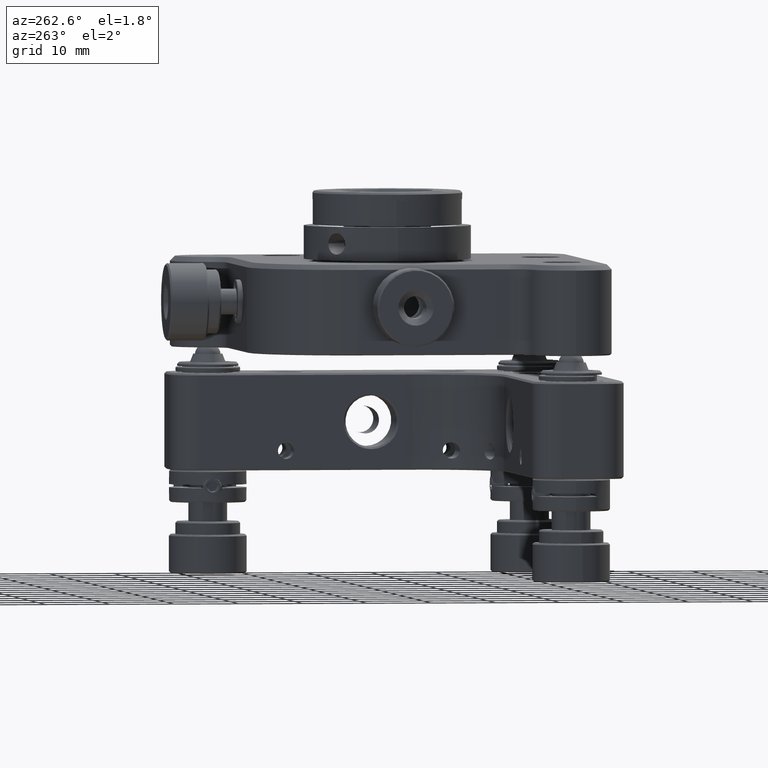
[diagram: clean part render]
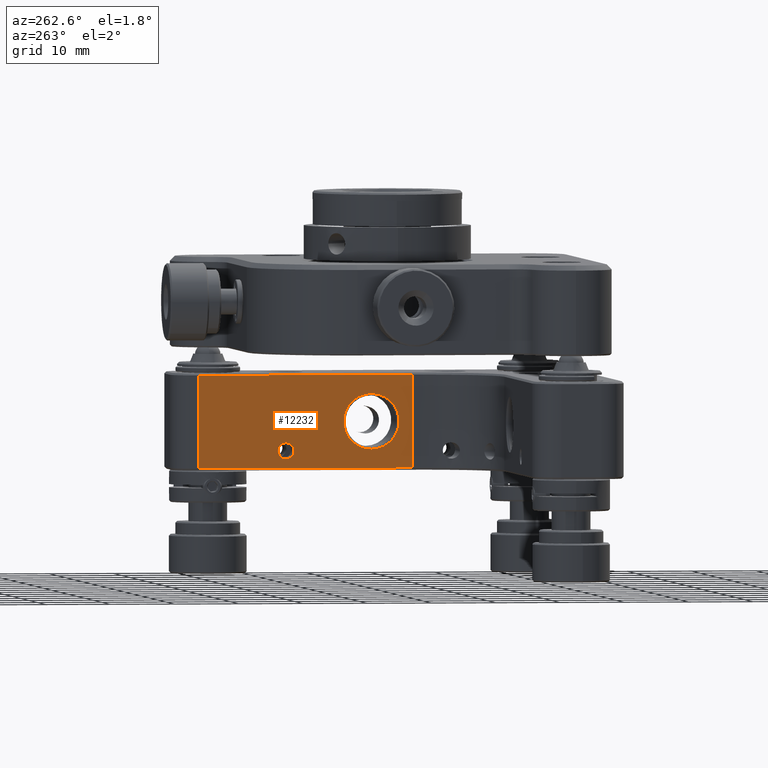
[diagram: same view with one face highlighted and labeled with its STEP entity id]
A machine part, auxiliary view. The second image highlights one B-rep face of the part: STEP entity #12232.
In plain terms, the highlighted planar face has unit normal (1, 0, -0).
Its self-contained STEP definition (entity closure, byte-faithful):
#305 = VERTEX_POINT ( 'NONE', #13285 ) ;
#349 = FACE_BOUND ( 'NONE', #17537, .T. ) ;
#570 = PLANE ( 'NONE',  #3672 ) ;
#653 = CARTESIAN_POINT ( 'NONE',  ( 21.58999999999999986, 10.74787746154795975, -20.27500000000000213 ) ) ;
#916 = VERTEX_POINT ( 'NONE', #10773 ) ;
#1551 = AXIS2_PLACEMENT_3D ( 'NONE', #4276, #11467, #11355 ) ;
#2571 = CARTESIAN_POINT ( 'NONE',  ( 21.59000000000000341, -2.543999999999996042, -12.72499999999999964 ) ) ;
#2629 = CARTESIAN_POINT ( 'NONE',  ( 21.58999999999999986, 24.32099999999999795, -9.825000000000022382 ) ) ;
#2924 = ORIENTED_EDGE ( 'NONE', *, *, #16466, .T. ) ;
#3327 = CARTESIAN_POINT ( 'NONE',  ( 21.58999999999999986, -8.890000000000000568, -24.22500000000000497 ) ) ;
#3394 = DIRECTION ( 'NONE',  ( 0.0000000000000000000, 1.000000000000000000, 0.0000000000000000000 ) ) ;
#3672 = AXIS2_PLACEMENT_3D ( 'NONE', #20787, #5661, #3996 ) ;
#3996 = DIRECTION ( 'NONE',  ( -1.365822859449484003E-16, 1.000000000000000000, 0.0000000000000000000 ) ) ;
#4276 = CARTESIAN_POINT ( 'NONE',  ( 21.58999999999999986, 10.74787746154795975, -21.52499999999999858 ) ) ;
#4839 = DIRECTION ( 'NONE',  ( 1.365822859449484003E-16, -1.000000000000000000, -1.081919997490797999E-16 ) ) ;
#5256 = AXIS2_PLACEMENT_3D ( 'NONE', #6617, #13353, #3394 ) ;
#5299 = EDGE_CURVE ( 'NONE', #305, #17632, #6516, .T. ) ;
#5341 = DIRECTION ( 'NONE',  ( 4.760512959350109744E-17, -1.203099312152367935E-17, 1.000000000000000000 ) ) ;
#5661 = DIRECTION ( 'NONE',  ( 1.000000000000000000, 1.365822859449484003E-16, -4.760512959350109744E-17 ) ) ;
#6321 = VERTEX_POINT ( 'NONE', #653 ) ;
#6347 = CARTESIAN_POINT ( 'NONE',  ( 21.59000000000000341, -2.543999999999995598, -21.32500000000000995 ) ) ;
#6516 = LINE ( 'NONE', #13256, #9737 ) ;
#6617 = CARTESIAN_POINT ( 'NONE',  ( 21.58999999999999986, 10.74787746154795975, -21.52499999999999858 ) ) ;
#6925 = LINE ( 'NONE', #18730, #11642 ) ;
#7620 = DIRECTION ( 'NONE',  ( -1.365822859449484003E-16, 1.000000000000000000, 1.203099312152368552E-17 ) ) ;
#8104 = CIRCLE ( 'NONE', #13408, 4.300000000000005151 ) ;
#9097 = FACE_BOUND ( 'NONE', #9741, .T. ) ;
#9385 = CARTESIAN_POINT ( 'NONE',  ( 21.58999999999999986, 24.32099999999999795, -9.825000000000022382 ) ) ;
#9737 = VECTOR ( 'NONE', #4839, 1000.000000000000000 ) ;
#9741 = EDGE_LOOP ( 'NONE', ( #20763, #20248 ) ) ;
#9838 = CIRCLE ( 'NONE', #12668, 4.300000000000005151 ) ;
#9934 = ORIENTED_EDGE ( 'NONE', *, *, #13317, .T. ) ;
#10330 = DIRECTION ( 'NONE',  ( -4.760512959350109744E-17, 1.203099312152367935E-17, -1.000000000000000000 ) ) ;
#10591 = EDGE_CURVE ( 'NONE', #21256, #305, #6925, .T. ) ;
#10773 = CARTESIAN_POINT ( 'NONE',  ( 21.58999999999999986, -8.890000000000000568, -9.825000000000022382 ) ) ;
#11355 = DIRECTION ( 'NONE',  ( 0.0000000000000000000, 1.000000000000000000, 0.0000000000000000000 ) ) ;
#11467 = DIRECTION ( 'NONE',  ( 1.000000000000000000, 0.0000000000000000000, -4.760512959350109744E-17 ) ) ;
#11642 = VECTOR ( 'NONE', #10330, 1000.000000000000000 ) ;
#11921 = VERTEX_POINT ( 'NONE', #6347 ) ;
#12232 = ADVANCED_FACE ( 'NONE', ( #9097, #349, #17595 ), #570, .F. ) ;
#12349 = DIRECTION ( 'NONE',  ( 0.0000000000000000000, 1.000000000000000000, 0.0000000000000000000 ) ) ;
#12668 = AXIS2_PLACEMENT_3D ( 'NONE', #17112, #20399, #12349 ) ;
#12757 = ORIENTED_EDGE ( 'NONE', *, *, #10591, .T. ) ;
#13256 = CARTESIAN_POINT ( 'NONE',  ( 21.59000000000000341, -8.890000000000000568, -24.22500000000000853 ) ) ;
#13285 = CARTESIAN_POINT ( 'NONE',  ( 21.58999999999999986, 24.32099999999999795, -24.22500000000000497 ) ) ;
#13317 = EDGE_CURVE ( 'NONE', #17632, #916, #15077, .T. ) ;
#13353 = DIRECTION ( 'NONE',  ( 1.000000000000000000, 0.0000000000000000000, -4.760512959350109744E-17 ) ) ;
#13408 = AXIS2_PLACEMENT_3D ( 'NONE', #13842, #18805, #17052 ) ;
#13842 = CARTESIAN_POINT ( 'NONE',  ( 21.59000000000000341, -2.543999999999996042, -17.02500000000000568 ) ) ;
#13977 = CARTESIAN_POINT ( 'NONE',  ( 21.58999999999999986, 10.74787746154795975, -22.77499999999999858 ) ) ;
#14921 = ORIENTED_EDGE ( 'NONE', *, *, #16277, .T. ) ;
#15077 = LINE ( 'NONE', #21782, #20937 ) ;
#15222 = EDGE_LOOP ( 'NONE', ( #12757, #18241, #9934, #14921 ) ) ;
#16205 = CIRCLE ( 'NONE', #5256, 1.249999999999999334 ) ;
#16235 = VECTOR ( 'NONE', #7620, 1000.000000000000000 ) ;
#16277 = EDGE_CURVE ( 'NONE', #916, #21256, #21301, .T. ) ;
#16466 = EDGE_CURVE ( 'NONE', #21218, #6321, #16205, .T. ) ;
#16532 = EDGE_CURVE ( 'NONE', #18520, #11921, #9838, .T. ) ;
#17052 = DIRECTION ( 'NONE',  ( 0.0000000000000000000, 1.000000000000000000, 0.0000000000000000000 ) ) ;
#17112 = CARTESIAN_POINT ( 'NONE',  ( 21.59000000000000341, -2.543999999999996042, -17.02500000000000568 ) ) ;
#17325 = EDGE_CURVE ( 'NONE', #11921, #18520, #8104, .T. ) ;
#17537 = EDGE_LOOP ( 'NONE', ( #2924, #20672 ) ) ;
#17595 = FACE_OUTER_BOUND ( 'NONE', #15222, .T. ) ;
#17632 = VERTEX_POINT ( 'NONE', #3327 ) ;
#18241 = ORIENTED_EDGE ( 'NONE', *, *, #5299, .T. ) ;
#18520 = VERTEX_POINT ( 'NONE', #2571 ) ;
#18730 = CARTESIAN_POINT ( 'NONE',  ( 21.58999999999999986, 24.32099999999999795, -25.01899999999999835 ) ) ;
#18805 = DIRECTION ( 'NONE',  ( 1.000000000000000000, 1.365822859449484003E-16, -4.760512959350109744E-17 ) ) ;
#20248 = ORIENTED_EDGE ( 'NONE', *, *, #17325, .T. ) ;
#20399 = DIRECTION ( 'NONE',  ( 1.000000000000000000, 1.365822859449484003E-16, -4.760512959350109744E-17 ) ) ;
#20597 = CIRCLE ( 'NONE', #1551, 1.249999999999999334 ) ;
#20672 = ORIENTED_EDGE ( 'NONE', *, *, #21276, .T. ) ;
#20763 = ORIENTED_EDGE ( 'NONE', *, *, #16532, .T. ) ;
#20787 = CARTESIAN_POINT ( 'NONE',  ( 21.58999999999999986, 16.51188083652389693, -25.01899999999999835 ) ) ;
#20937 = VECTOR ( 'NONE', #5341, 1000.000000000000000 ) ;
#21218 = VERTEX_POINT ( 'NONE', #13977 ) ;
#21256 = VERTEX_POINT ( 'NONE', #2629 ) ;
#21276 = EDGE_CURVE ( 'NONE', #6321, #21218, #20597, .T. ) ;
#21301 = LINE ( 'NONE', #9385, #16235 ) ;
#21782 = CARTESIAN_POINT ( 'NONE',  ( 21.58999999999999986, -8.890000000000000568, -25.01899999999999835 ) ) ;